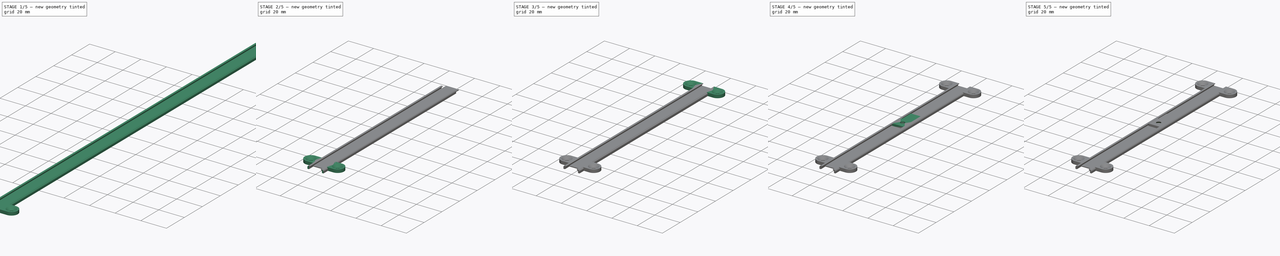
[diagram: build sequence overview — one tinted view per stage of 5, left to right]
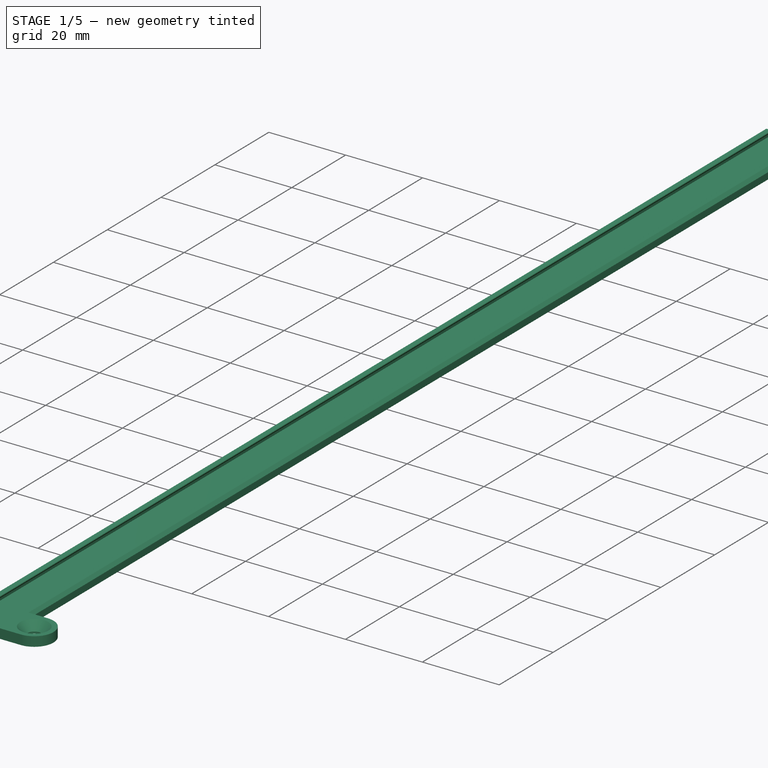
[diagram: stage 1 of 5 — iso view after this stage's code; geometry added in this stage tinted green]
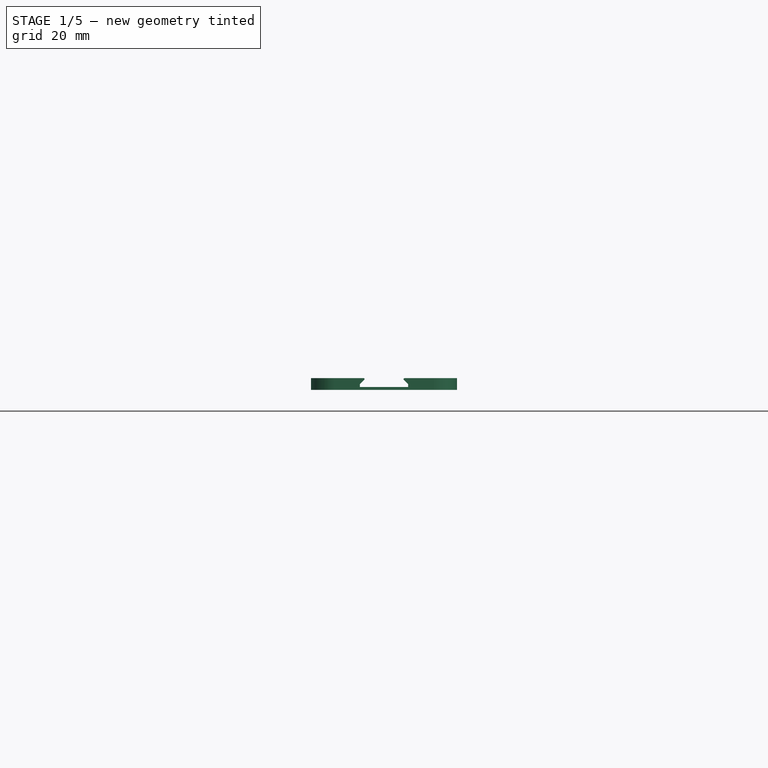
[diagram: stage 1 of 5 — front view after this stage's code; geometry added in this stage tinted green]
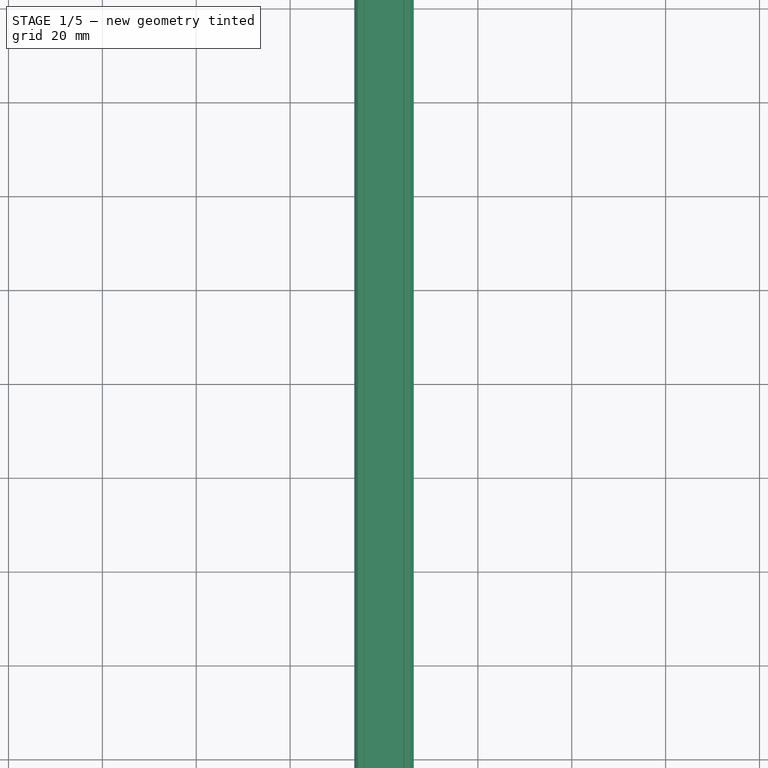
[diagram: stage 1 of 5 — top view after this stage's code; geometry added in this stage tinted green]
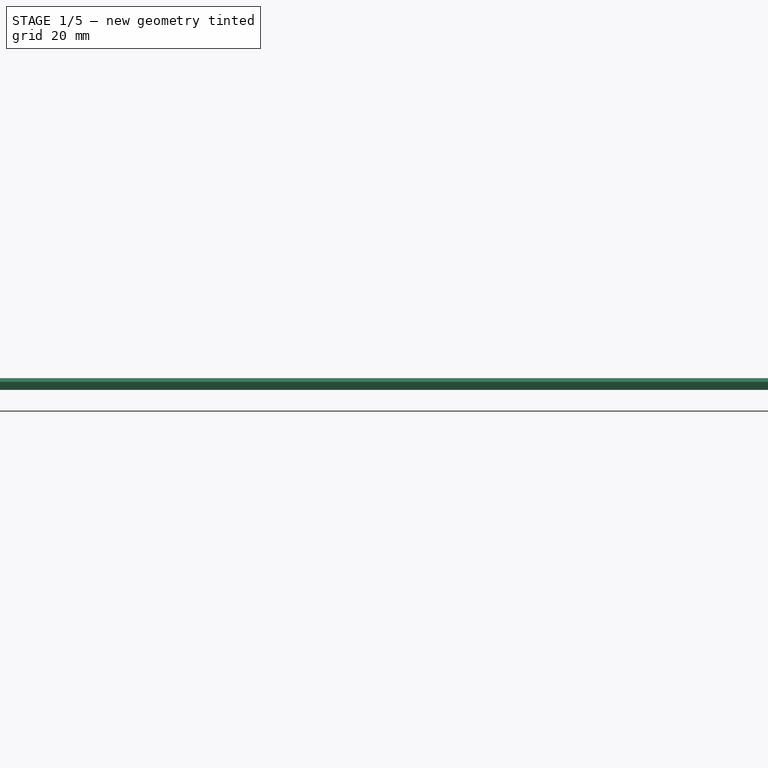
[diagram: stage 1 of 5 — right view after this stage's code; geometry added in this stage tinted green]
FCSTD DOCUMENT  (FreeCAD 0.18.4R)
Label: LedStripHolder
License: All rights reserved
LicenseURL: http://en.wikipedia.org/wiki/All_rights_reserved
objects: Sketcher::SketchObject×8, PartDesign::Pad×6, PartDesign::Fillet×4, PartDesign::Chamfer×3, PartDesign::Body×3, PartDesign::Pocket×1, PartDesign::FeatureBase×1
note: 33 computed .brp shape members not serialized (recipe doc carries the construction recipe); baked Part::Feature solids carry a one-line shape summary decoded from their .brp

FEATURE [PartDesign::Body] Body
  Group = -> [Sketch,Sketch001,Pad,Sketch002,Pad001,Chamfer,Fillet,Fillet001]
  Origin = -> Origin
  Tip = -> Fillet001
FEATURE [Sketcher::SketchObject] Sketch003
  MapMode = 5
  Placement = pos=(0,0,0) rot=(1,0,0;1.5708rad)
  Support = -> [XZ_Plane001]
  sketch-geometry (19):
    g0: LineSegment StartX=-5.15 StartY=1.2 StartZ=0 EndX=-5.15 EndY=0.6 EndZ=0
    g1: LineSegment StartX=-5.15 StartY=0.6 StartZ=0 EndX=5.15 EndY=0.6 EndZ=0
    g2: LineSegment StartX=5.15 StartY=0.6 StartZ=0 EndX=5.15 EndY=1.2 EndZ=0
    g3: LineSegment StartX=5.15 StartY=1.2 StartZ=0 EndX=4.20858 EndY=2.14142 EndZ=0
    g4: LineSegment StartX=6.35 StartY=1.69706 StartZ=0 EndX=6.35 EndY=0 EndZ=0
    g5: LineSegment StartX=6.35 StartY=0 StartZ=0 EndX=-6.35 EndY=0 EndZ=0
    g6: LineSegment StartX=-6.35 StartY=0 StartZ=0 EndX=-6.35 EndY=1.69706 EndZ=0
    g7: LineSegment StartX=-5.56421 StartY=2.48284 StartZ=0 EndX=-4.35 EndY=2.48284 EndZ=0
    g8: LineSegment StartX=-4.20858 StartY=2.14142 StartZ=0 EndX=-5.15 EndY=1.2 EndZ=0
    g9: LineSegment StartX=4.35 StartY=2.48284 StartZ=0 EndX=5.56421 EndY=2.48284 EndZ=0
    g10: ArcOfCircle CenterX=4.35 CenterY=2.28284 CenterZ=0 NormalX=0 NormalY=0 NormalZ=1 AngleXU=0 Radius=0.2 StartAngle=1.5708 EndAngle=3.92699
    g11: ArcOfCircle CenterX=-4.35 CenterY=2.28284 CenterZ=0 NormalX=0 NormalY=0 NormalZ=1 AngleXU=0 Radius=0.2 StartAngle=5.49779 EndAngle=7.85398
    g12: LineSegment [constr] StartX=-4.15 StartY=2.28284 StartZ=0 EndX=-4.15 EndY=0.6 EndZ=0
    g13: LineSegment StartX=-6.35 StartY=1.69706 StartZ=0 EndX=-5.56421 EndY=2.48284 EndZ=0
    g14: LineSegment StartX=5.56421 StartY=2.48284 StartZ=0 EndX=6.35 EndY=1.69706 EndZ=0
    g15: LineSegment [constr] StartX=-5.15 StartY=1.2 StartZ=0 EndX=-5.99853 EndY=2.04853 EndZ=0
    g16: LineSegment [constr] StartX=-5.15 StartY=1.2 StartZ=0 EndX=-6.35 EndY=1.2 EndZ=0
    g17: LineSegment [constr] StartX=-5.15 StartY=1.2 StartZ=0 EndX=-4.20858 EndY=1.2 EndZ=0
    g18: LineSegment [constr] StartX=-4.20858 StartY=1.2 StartZ=0 EndX=-4.20858 EndY=2.14142 EndZ=0
  constraints (56):
    c: Vertical(g0)
    c: Coincident(g0,g1)
    c: Horizontal(g1)
    c: Coincident(g1,g2)
    c: Vertical(g2)
    c: Coincident(g2,g3)
    c: Vertical(g4)
    c: Coincident(g4,g5)
    c: Horizontal(g5)
    c: Coincident(g5,g6)
    c: Vertical(g6)
    c: Horizontal(g7)
    c: Coincident(g8,g0)
    c: Horizontal(g9)
    c: Equal(g9,g7)
    c: Equal(g6,g4)
    c: Equal(g2,g0)
    c: Equal(g3,g8)
    c: DistanceY(g5,g0) = 0.6
    c: DistanceY(g0,g0) = 0.6
    c: DistanceX(g5,g0) = 1.2
    c: DistanceX(g0,g2) = 10.3
    c: Tangent(g3,g10) = 1.5708
    c: Tangent(g9,g10) = 1.5708
    c: Tangent(g7,g11) = 1.5708
    c: Tangent(g8,g11) = 1.5708
    c: Equal(g11,g10)
    c: Radius(g11) = 0.2
    c: PointOnObject(g12,g1)
    c: Vertical(g12)
    c: Tangent(g12,g11) = 1.5708
    c: DistanceX(g0,g12) = 1
    c: Coincident(g15,g0)
    c: PointOnObject(g15,g13)
    c: Coincident(g16,g0)
    c: PointOnObject(g16,g6)
    c: Horizontal(g16)
    c: Perpendicular(g13,g15)
    c: Perpendicular(g8,g15)
    c: Equal(g16,g15)
    c: Equal(g13,g14)
    c: PointOnObject(g9,g7)
    c: Coincident(g17,g0)
    c: Horizontal(g17)
    c: Coincident(g18,g17)
    c: Coincident(g18,g8)
    c: Vertical(g18)
    c: Equal(g17,g18)
    c: Symmetric(g5,g4,g-1)  '__ANCHOR__'
    c: DistanceX(g5,g5) = 12.7  'Width'
    c: DistanceY(g5,g7) = 2.48284  'Height'
    c: Coincident(g13,g7)
    c: Coincident(g13,g6)
    c: Coincident(g9,g14)
    c: Coincident(g14,g4)
    c: DistanceX(g7,g9) = 11.1284  'FlapDisplacement'
FEATURE [PartDesign::Pad] Pad002
  Length = 300
  Length2 = 100
  Midplane = true
  Placement = pos=(0,0,0) rot=(1,0,0;1.5708rad)
  Profile = -> Sketch003
  Type = 0
FEATURE [Sketcher::SketchObject] Sketch004
  MapMode = 5
  Support = -> [XY_Plane001]
  expr: Constraints[16] = Pad002.Length / 2
  expr: Constraints[11] = Sketch003.Constraints.FlapDisplacement / 2
  sketch-geometry (16):
    g0: LineSegment StartX=-10.5642 StartY=-65 StartZ=0 EndX=-5.56421 EndY=-65 EndZ=0
    g1: LineSegment StartX=-5.56421 StartY=-65 StartZ=0 EndX=-5.56421 EndY=-75 EndZ=0
    g2: LineSegment StartX=-5.56421 StartY=-75 StartZ=0 EndX=-10.5642 EndY=-75 EndZ=0
    g3: LineSegment [constr] StartX=-10.5642 StartY=-75 StartZ=0 EndX=-10.5642 EndY=-65 EndZ=0
    g4: ArcOfCircle CenterX=-10.5642 CenterY=-70 CenterZ=0 NormalX=0 NormalY=0 NormalZ=1 AngleXU=0 Radius=5 StartAngle=1.5708 EndAngle=4.71239
    g5: LineSegment [constr] StartX=-5.56421 StartY=-75 StartZ=0 EndX=0 EndY=-75 EndZ=0
    g6: Circle CenterX=-10.5642 CenterY=-70 CenterZ=0 NormalX=0 NormalY=0 NormalZ=1 AngleXU=0 Radius=1.7
    g7: LineSegment [constr] StartX=0 StartY=-75 StartZ=0 EndX=0 EndY=0 EndZ=0
    g8: LineSegment StartX=5.56421 StartY=-65 StartZ=0 EndX=10.5642 EndY=-65 EndZ=0
    g9: LineSegment [constr] StartX=10.5642 StartY=-65 StartZ=0 EndX=10.5642 EndY=-75 EndZ=0
    g10: LineSegment StartX=10.5642 StartY=-75 StartZ=0 EndX=5.56421 EndY=-75 EndZ=0
    g11: LineSegment StartX=5.56421 StartY=-75 StartZ=0 EndX=5.56421 EndY=-65 EndZ=0
    g12: ArcOfCircle CenterX=10.5642 CenterY=-70 CenterZ=0 NormalX=0 NormalY=0 NormalZ=1 AngleXU=0 Radius=5 StartAngle=4.71239 EndAngle=7.85398
    g13: Circle CenterX=10.5642 CenterY=-70 CenterZ=0 NormalX=0 NormalY=0 NormalZ=1 AngleXU=0 Radius=1.7
    g14: LineSegment [constr] StartX=-10.5642 StartY=-70 StartZ=0 EndX=-15.5642 EndY=-70 EndZ=0
    g15: LineSegment [constr] StartX=0 StartY=-75 StartZ=0 EndX=5.56421 EndY=-75 EndZ=0
  constraints (43):
    c: Coincident(g0,g1)
    c: Coincident(g1,g2)
    c: Coincident(g2,g3)
    c: Coincident(g3,g0)
    c: Horizontal(g0)
    c: Horizontal(g2)
    c: Vertical(g1)
    c: Radius(g4) = 5
    c: Coincident(g5,g1)
    c: PointOnObject(g5,g-2)
    c: Horizontal(g5)
    c: DistanceX(g5,g5) = 5.56421
    c: Coincident(g6,g4)
    c: Radius(g6) = 1.7
    c: Coincident(g7,g5)
    c: Coincident(g7,g-1)
    c: DistanceY(g7,g7) = 75
    c: Coincident(g8,g9)
    c: Coincident(g9,g10)
    c: Coincident(g10,g11)
    c: Coincident(g11,g8)
    c: Horizontal(g8)
    c: Horizontal(g10)
    c: Vertical(g9)
    c: Vertical(g11)
    c: Equal(g11,g1)
    c: PointOnObject(g12,g9)
    c: Coincident(g12,g8)
    c: Coincident(g12,g10)
    c: Vertical(g3)
    c: Equal(g0,g10)
    c: Coincident(g13,g12)
    c: Equal(g13,g6)
    c: Tangent(g4,g0) = 1.5708
    c: Coincident(g4,g2)
    c: Coincident(g14,g4)
    c: PointOnObject(g14,g4)
    c: Horizontal(g14)
    c: Equal(g14,g0)
    c: Coincident(g15,g5)
    c: Coincident(g15,g10)
    c: Horizontal(g15)
    c: Equal(g15,g5)
FEATURE [PartDesign::Pad] Pad003
  BaseFeature = -> Pad002
  Length = 2.48284
  Length2 = 100
  Placement = pos=(0,0,0) rot=(1,0,0;1.5708rad)
  Profile = -> Sketch004
  Refine = true
  Type = 0
  expr: Length = Sketch003.Constraints.Height
FEATURE [Sketcher::SketchObject] Sketch005
  AttachmentOffset = pos=(0,0,75) rot=(0,0,1;0rad)
  ExternalGeometry = -> [Sketch003]
  MapMode = 5
  Placement = pos=(0,-75,-1.67e-14) rot=(1,0,0;1.5708rad)
  Support = -> [XZ_Plane001]
  expr: AttachmentOffset.Base.z = Pad002.Length / 2
  sketch-geometry (14):
    g0: ArcOfCircle CenterX=-4.35 CenterY=2.28284 CenterZ=0 NormalX=0 NormalY=0 NormalZ=1 AngleXU=0 Radius=0.2 StartAngle=5.49779 EndAngle=7.85398
    g1: ArcOfCircle CenterX=4.35 CenterY=2.28284 CenterZ=0 NormalX=0 NormalY=0 NormalZ=1 AngleXU=0 Radius=0.2 StartAngle=1.5708 EndAngle=3.92699
    g2: LineSegment StartX=4.20858 StartY=2.14142 StartZ=0 EndX=5.15 EndY=1.2 EndZ=0
    g3: LineSegment StartX=5.15 StartY=1.2 StartZ=0 EndX=5.15 EndY=0 EndZ=0
    g4: LineSegment StartX=6.35 StartY=0 StartZ=0 EndX=6.35 EndY=1.69706 EndZ=0
    g5: LineSegment StartX=6.35 StartY=1.69706 StartZ=0 EndX=5.56421 EndY=2.48284 EndZ=0
    g6: LineSegment StartX=5.56421 StartY=2.48284 StartZ=0 EndX=4.35 EndY=2.48284 EndZ=0
    g7: LineSegment StartX=-4.35 StartY=2.48284 StartZ=0 EndX=-5.56421 EndY=2.48284 EndZ=0
    g8: LineSegment StartX=-5.56421 StartY=2.48284 StartZ=0 EndX=-6.35 EndY=1.69706 EndZ=0
    g9: LineSegment StartX=-5.15 StartY=0 StartZ=0 EndX=-5.15 EndY=1.2 EndZ=0
    g10: LineSegment StartX=-5.15 StartY=1.2 StartZ=0 EndX=-4.20858 EndY=2.14142 EndZ=0
    g11: LineSegment StartX=5.15 StartY=0 StartZ=0 EndX=6.35 EndY=0 EndZ=0
    g12: LineSegment StartX=-6.35 StartY=1.69706 StartZ=0 EndX=-6.35 EndY=0 EndZ=0
    g13: LineSegment StartX=-6.35 StartY=0 StartZ=0 EndX=-5.15 EndY=0 EndZ=0
  constraints (34):
    c: Coincident(g0,g-3)
    c: Coincident(g0,g-3)
    c: Coincident(g0,g-3)
    c: Coincident(g1,g-4)
    c: Coincident(g1,g-4)
    c: Coincident(g1,g-4)
    c: Coincident(g1,g2)
    c: Coincident(g2,g-10)
    c: Coincident(g2,g3)
    c: Coincident(g5,g-8)
    c: Coincident(g6,g5)
    c: Coincident(g6,g1)
    c: Coincident(g0,g7)
    c: Coincident(g7,g-5)
    c: Coincident(g7,g8)
    c: Coincident(g9,g-7)
    c: Coincident(g9,g10)
    c: Coincident(g10,g0)
    c: Vertical(g4)
    c: PointOnObject(g4,g-1)
    c: PointOnObject(g5,g-8)
    c: Equal(g5,g8)
    c: Coincident(g4,g5)
    c: Coincident(g11,g4)
    c: Coincident(g8,g-6)
    c: Coincident(g12,g8)
    c: Coincident(g12,g-6)
    c: Coincident(g13,g12)
    c: Horizontal(g13)
    c: Coincident(g9,g13)
    c: Vertical(g9)
    c: Vertical(g3)
    c: Horizontal(g11)
    c: Coincident(g3,g11)
FEATURE [Sketcher::SketchObject] Sketch006
  AttachmentOffset = pos=(0,0,-75) rot=(0,0,1;0rad)
  ExternalGeometry = -> [Sketch003]
  MapMode = 5
  Placement = pos=(0,75,1.67e-14) rot=(1,0,0;1.5708rad)
  Support = -> [XZ_Plane001]
  expr: AttachmentOffset.Base.z = Pad002.Length / -2
  sketch-geometry (14):
    g0: ArcOfCircle CenterX=-4.35 CenterY=2.28284 CenterZ=0 NormalX=0 NormalY=0 NormalZ=1 AngleXU=0 Radius=0.2 StartAngle=5.49779 EndAngle=7.85398
    g1: ArcOfCircle CenterX=4.35 CenterY=2.28284 CenterZ=0 NormalX=0 NormalY=0 NormalZ=1 AngleXU=0 Radius=0.2 StartAngle=1.5708 EndAngle=3.92699
    g2: LineSegment StartX=5 StartY=2e-16 StartZ=0 EndX=6.35 EndY=2e-16 EndZ=0
    g3: LineSegment StartX=6.35 StartY=2e-16 StartZ=0 EndX=6.35 EndY=1.69706 EndZ=0
    g4: LineSegment StartX=6.35 StartY=1.69706 StartZ=0 EndX=5.56421 EndY=2.48284 EndZ=0
    g5: LineSegment StartX=5.56421 StartY=2.48284 StartZ=0 EndX=4.35 EndY=2.48284 EndZ=0
    g6: LineSegment StartX=-4.35 StartY=2.48284 StartZ=0 EndX=-5.56421 EndY=2.48284 EndZ=0
    g7: LineSegment StartX=-5.56421 StartY=2.48284 StartZ=0 EndX=-6.35 EndY=1.69706 EndZ=0
    g8: LineSegment StartX=-6.35 StartY=1.69706 StartZ=0 EndX=-6.35 EndY=0 EndZ=0
    g9: LineSegment StartX=-5 StartY=0 StartZ=0 EndX=-5 EndY=1.35 EndZ=0
    g10: LineSegment StartX=-5 StartY=1.35 StartZ=0 EndX=-4.20858 EndY=2.14142 EndZ=0
    g11: LineSegment StartX=-5 StartY=0 StartZ=0 EndX=-6.35 EndY=0 EndZ=0
    g12: LineSegment StartX=4.20858 StartY=2.14142 StartZ=0 EndX=5 EndY=1.35 EndZ=0
    g13: LineSegment StartX=5 StartY=2e-16 StartZ=0 EndX=5 EndY=1.35 EndZ=0
  constraints (34):
    c: Coincident(g0,g-3)
    c: Coincident(g0,g-3)
    c: Coincident(g0,g-3)
    c: Coincident(g1,g-4)
    c: Coincident(g1,g-4)
    c: Coincident(g1,g-4)
    c: Horizontal(g2)
    c: Coincident(g2,g3)
    c: Coincident(g3,g-9)
    c: Coincident(g3,g4)
    c: Coincident(g4,g-8)
    c: Coincident(g5,g4)
    c: Coincident(g5,g1)
    c: Coincident(g0,g6)
    c: Coincident(g6,g-5)
    c: Coincident(g6,g7)
    c: Coincident(g7,g-6)
    c: Coincident(g7,g8)
    c: Coincident(g10,g0)
    c: Vertical(g9)
    c: PointOnObject(g-7,g10)
    c: Coincident(g9,g10)
    c: DistanceX(g-7,g9) = 0.15
    c: Coincident(g8,g-6)
    c: Coincident(g11,g9)
    c: Coincident(g11,g8)
    c: Horizontal(g11)
    c: Coincident(g2,g-9)
    c: Coincident(g12,g1)
    c: PointOnObject(g-10,g12)
    c: Coincident(g13,g2)
    c: Coincident(g13,g12)
    c: Vertical(g13)
    c: Equal(g11,g2)
FEATURE [Sketcher::SketchObject] Sketch007
  MapMode = 5
  Support = -> [XY_Plane002]
  expr: Constraints[35] = Pad002.Length / 2
  expr: Constraints[8] = Sketch003.Constraints.FlapDisplacement / 2
  sketch-geometry (16):
    g0: LineSegment StartX=-10.5642 StartY=75 StartZ=0 EndX=-5.56421 EndY=75 EndZ=0
    g1: LineSegment StartX=-5.56421 StartY=75 StartZ=0 EndX=-5.56421 EndY=65 EndZ=0
    g2: LineSegment StartX=-5.56421 StartY=65 StartZ=0 EndX=-10.5642 EndY=65 EndZ=0
    g3: LineSegment [constr] StartX=-10.5642 StartY=65 StartZ=0 EndX=-10.5642 EndY=75 EndZ=0
    g4: ArcOfCircle CenterX=-10.5642 CenterY=70 CenterZ=0 NormalX=0 NormalY=0 NormalZ=1 AngleXU=0 Radius=5 StartAngle=1.5708 EndAngle=4.71239
    g5: LineSegment [constr] StartX=-5.56421 StartY=75 StartZ=0 EndX=0 EndY=75 EndZ=0
    g6: Circle CenterX=-10.5642 CenterY=70 CenterZ=0 NormalX=0 NormalY=0 NormalZ=1 AngleXU=0 Radius=1.7
    g7: LineSegment StartX=5.56421 StartY=75 StartZ=0 EndX=10.5642 EndY=75 EndZ=0
    g8: LineSegment [constr] StartX=10.5642 StartY=75 StartZ=0 EndX=10.5642 EndY=65 EndZ=0
    g9: LineSegment StartX=10.5642 StartY=65 StartZ=0 EndX=5.56421 EndY=65 EndZ=0
    g10: LineSegment StartX=5.56421 StartY=65 StartZ=0 EndX=5.56421 EndY=75 EndZ=0
    g11: ArcOfCircle CenterX=10.5642 CenterY=70 CenterZ=0 NormalX=0 NormalY=0 NormalZ=1 AngleXU=0 Radius=5 StartAngle=4.71239 EndAngle=7.85398
    g12: Circle CenterX=10.5642 CenterY=70 CenterZ=0 NormalX=0 NormalY=0 NormalZ=1 AngleXU=0 Radius=1.7
    g13: LineSegment [constr] StartX=-10.5642 StartY=70 StartZ=0 EndX=-15.5642 EndY=70 EndZ=0
    g14: LineSegment [constr] StartX=0 StartY=0 StartZ=0 EndX=0 EndY=75 EndZ=0
    g15: LineSegment [constr] StartX=5.56421 StartY=75 StartZ=0 EndX=0 EndY=75 EndZ=0
  constraints (43):
    c: Coincident(g0,g1)
    c: Coincident(g2,g3)
    c: Coincident(g3,g0)
    c: Horizontal(g0)
    c: Horizontal(g2)
    c: Vertical(g1)
    c: Radius(g4) = 5
    c: Horizontal(g5)
    c: DistanceX(g5,g5) = 5.56421
    c: Coincident(g6,g4)
    c: Radius(g6) = 1.7
    c: Coincident(g7,g8)
    c: Coincident(g8,g9)
    c: Coincident(g9,g10)
    c: Coincident(g10,g7)
    c: Horizontal(g7)
    c: Horizontal(g9)
    c: Vertical(g8)
    c: Vertical(g10)
    c: Equal(g10,g1)
    c: PointOnObject(g11,g8)
    c: Coincident(g11,g7)
    c: Coincident(g11,g9)
    c: Vertical(g3)
    c: Equal(g0,g9)
    c: Coincident(g12,g11)
    c: Equal(g12,g6)
    c: Tangent(g4,g0) = 1.5708
    c: Coincident(g4,g2)
    c: Coincident(g13,g4)
    c: PointOnObject(g13,g4)
    c: Horizontal(g13)
    c: Equal(g13,g0)
    c: Coincident(g14,g-1)
    c: Vertical(g14)
    c: DistanceY(g14,g14) = 75
    c: Coincident(g15,g7)
    c: Horizontal(g15)
    c: Coincident(g5,g0)
    c: Coincident(g5,g15)
    c: Equal(g15,g5)
    c: Coincident(g2,g1)
    c: Coincident(g5,g14)
FEATURE [PartDesign::Chamfer] Chamfer002
  Base = -> Pad003 [Edge58,Edge55]
  BaseFeature = -> Pad003
  Placement = pos=(0,0,0) rot=(1,0,0;1.5708rad)
  Size = 2
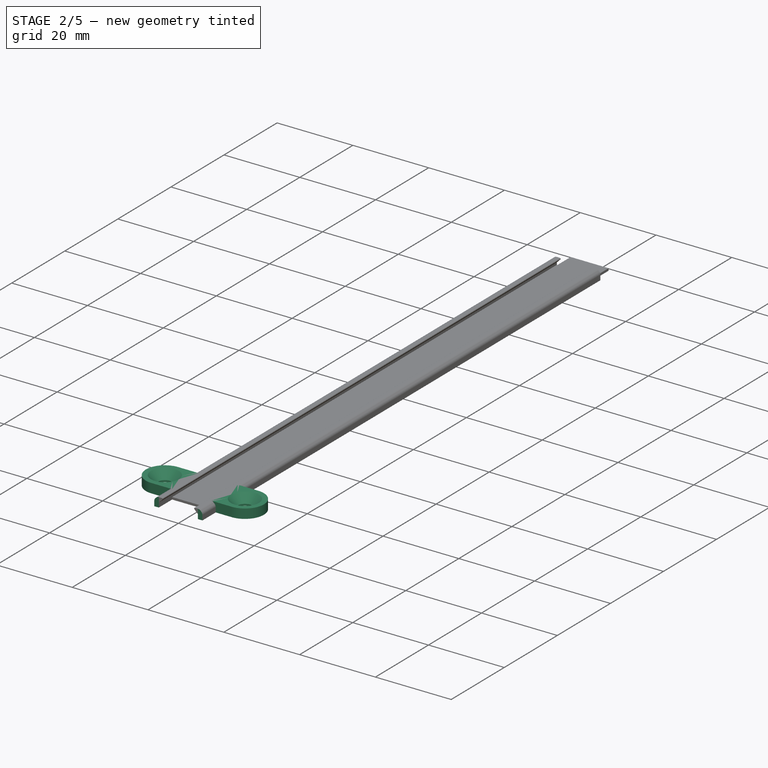
[diagram: stage 2 of 5 — iso view after this stage's code; geometry added in this stage tinted green]
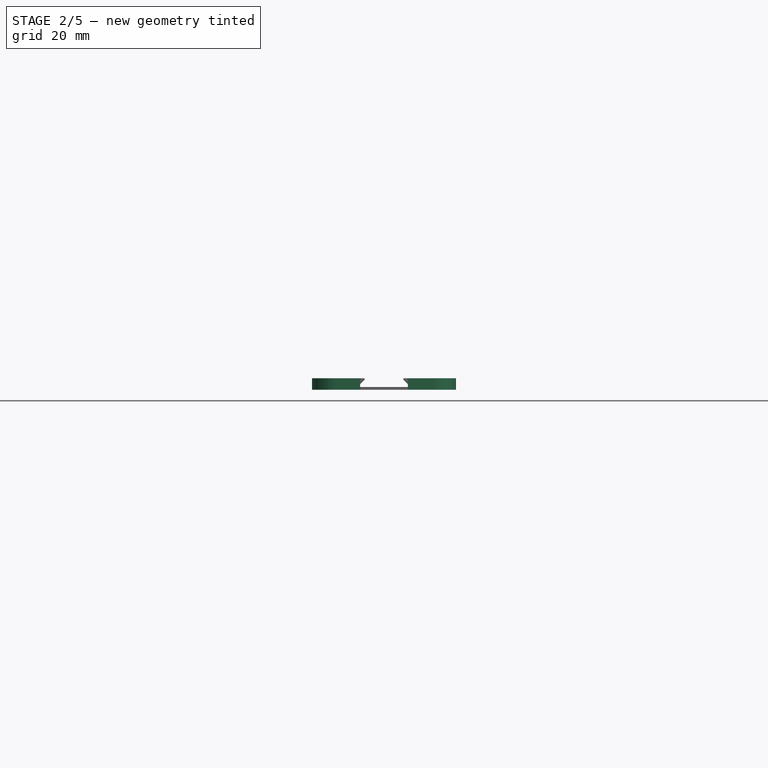
[diagram: stage 2 of 5 — front view after this stage's code; geometry added in this stage tinted green]
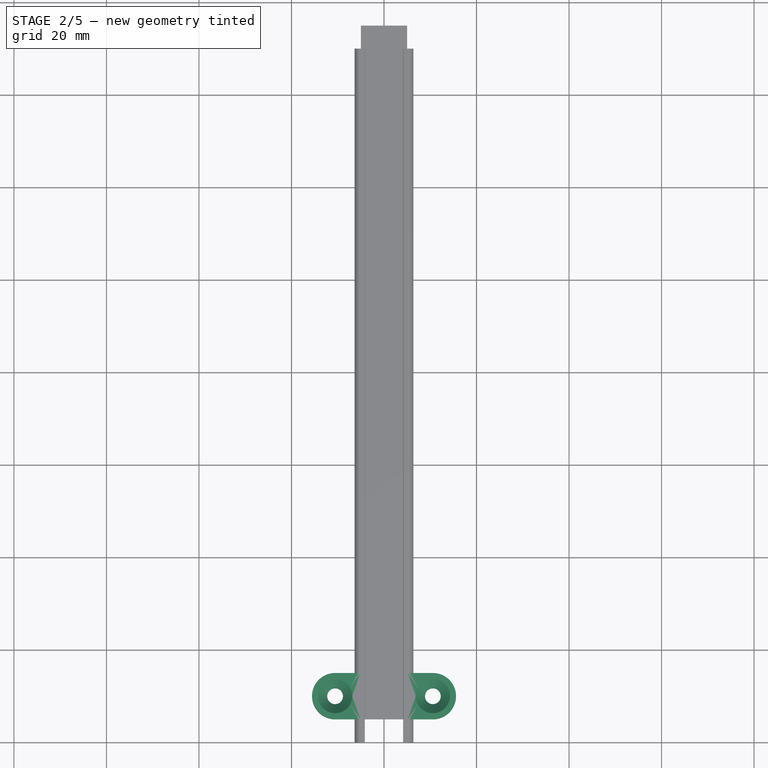
[diagram: stage 2 of 5 — top view after this stage's code; geometry added in this stage tinted green]
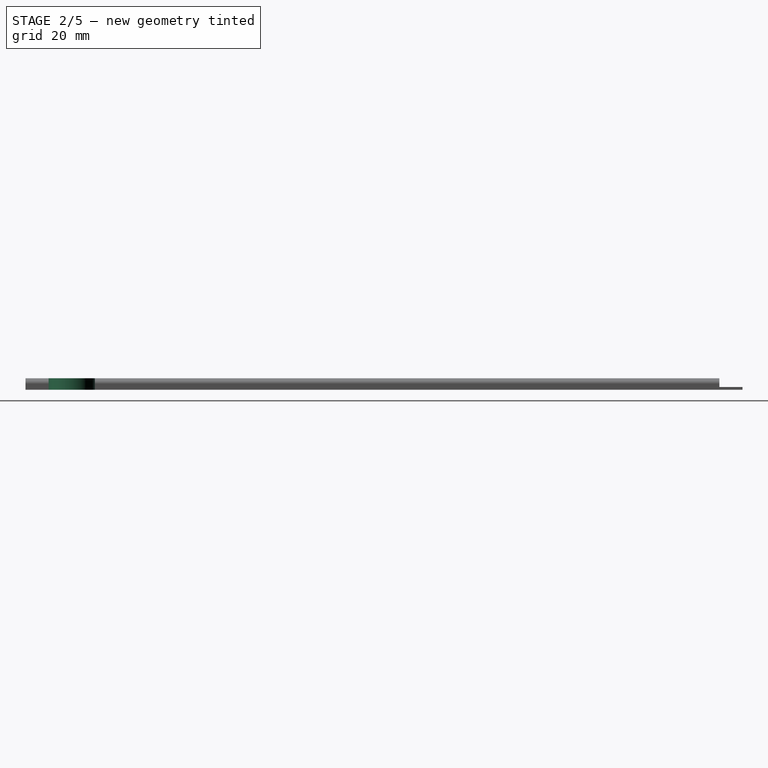
[diagram: stage 2 of 5 — right view after this stage's code; geometry added in this stage tinted green]
FEATURE [PartDesign::Pad] Pad004
  BaseFeature = -> Chamfer002
  Length = 5
  Length2 = 100
  Placement = pos=(0,0,0) rot=(1,0,0;1.5708rad)
  Profile = -> Sketch005
  Type = 0
FEATURE [PartDesign::Pocket] Pocket
  BaseFeature = -> Pad004
  Length = 5
  Length2 = 100
  Placement = pos=(0,0,0) rot=(1,0,0;1.5708rad)
  Profile = -> Sketch006
  Refine = true
  Reversed = true
  Type = 0
FEATURE [PartDesign::Body] Body002
  BaseFeature = -> Pad004
  Group = -> [Clone,Sketch007,Pad005,Chamfer001,Fillet002]
  Origin = -> Origin002
  Tip = -> Fillet002
FEATURE [PartDesign::Fillet] Fillet003
  Base = -> Pocket [Edge10,Edge12,Edge82,Edge70,Edge73,Edge81,Edge34,Edge35]
  BaseFeature = -> Pocket
  Placement = pos=(0,0,0) rot=(1,0,0;1.5708rad)
  Radius = 1
FEATURE [PartDesign::Body] Body001
  Group = -> [Sketch003,Pad002,Sketch004,Pad003,Sketch005,Chamfer002,Pad004,Sketch006,Pocket,Fillet003]
  Origin = -> Origin001
  Tip = -> Fillet003
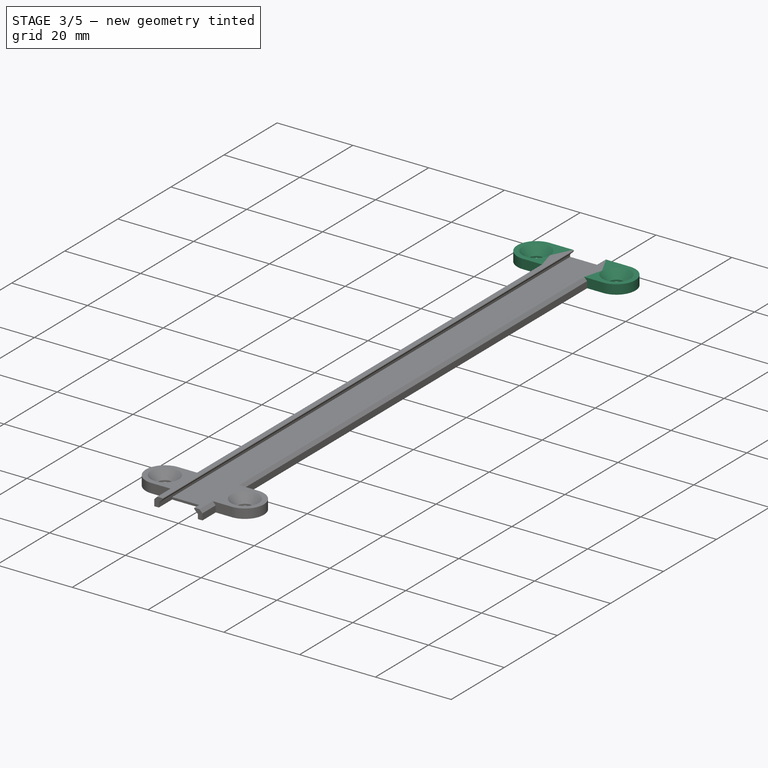
[diagram: stage 3 of 5 — iso view after this stage's code; geometry added in this stage tinted green]
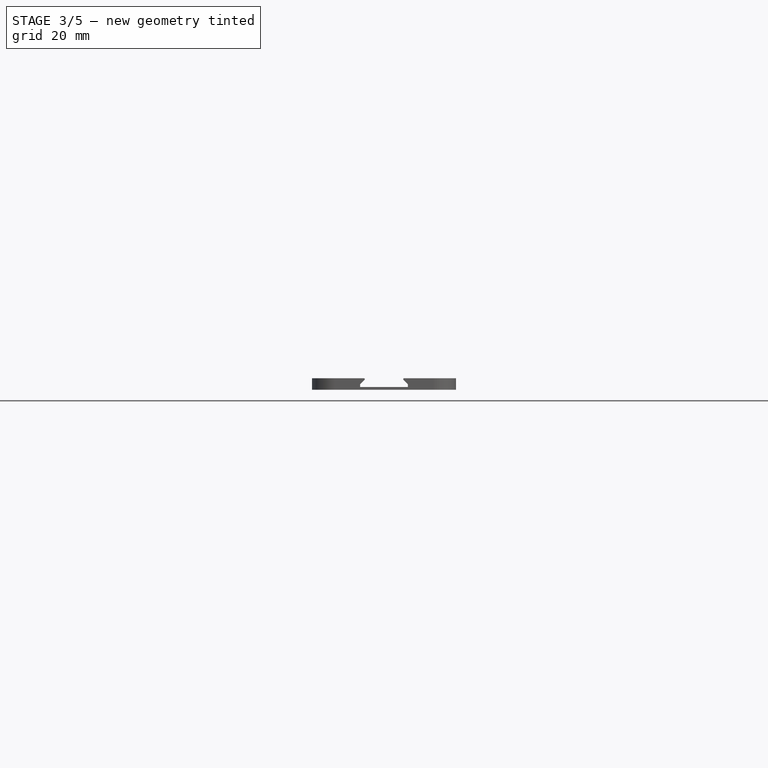
[diagram: stage 3 of 5 — front view after this stage's code; geometry added in this stage tinted green]
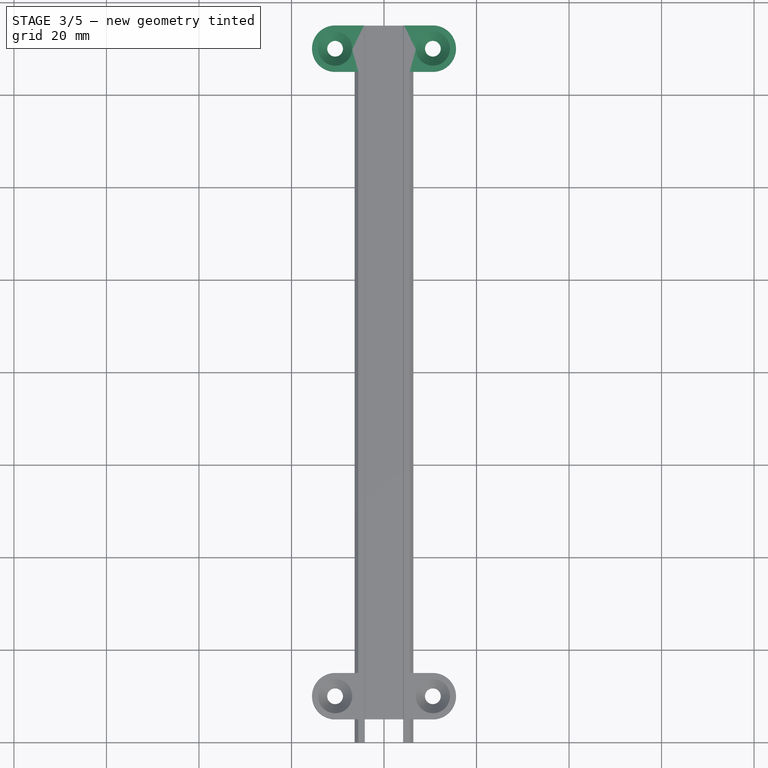
[diagram: stage 3 of 5 — top view after this stage's code; geometry added in this stage tinted green]
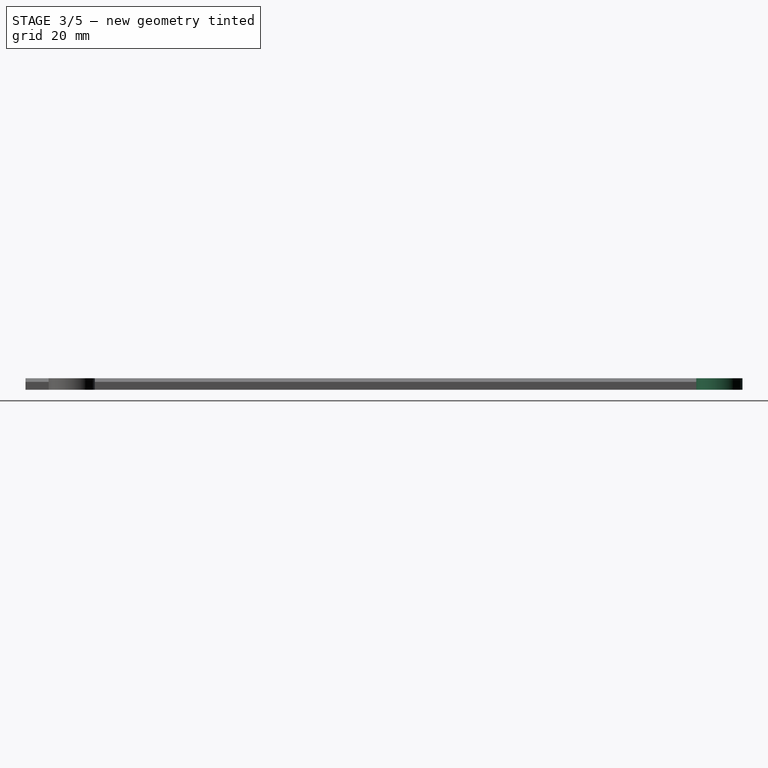
[diagram: stage 3 of 5 — right view after this stage's code; geometry added in this stage tinted green]
FEATURE [PartDesign::FeatureBase] Clone
  BaseFeature = -> Pad004
  Placement = pos=(0,0,0) rot=(1,0,0;1.5708rad)
FEATURE [PartDesign::Pad] Pad005
  BaseFeature = -> Clone
  Length = 2.48284
  Length2 = 100
  Placement = pos=(0,0,0) rot=(1,0,0;1.5708rad)
  Profile = -> Sketch007
  Refine = true
  Type = 0
  expr: Length = Pad003.Length
FEATURE [PartDesign::Chamfer] Chamfer001
  Base = -> Pad005 [Edge94,Edge53]
  BaseFeature = -> Pad005
  Placement = pos=(0,0,0) rot=(1,0,0;1.5708rad)
  Size = 2
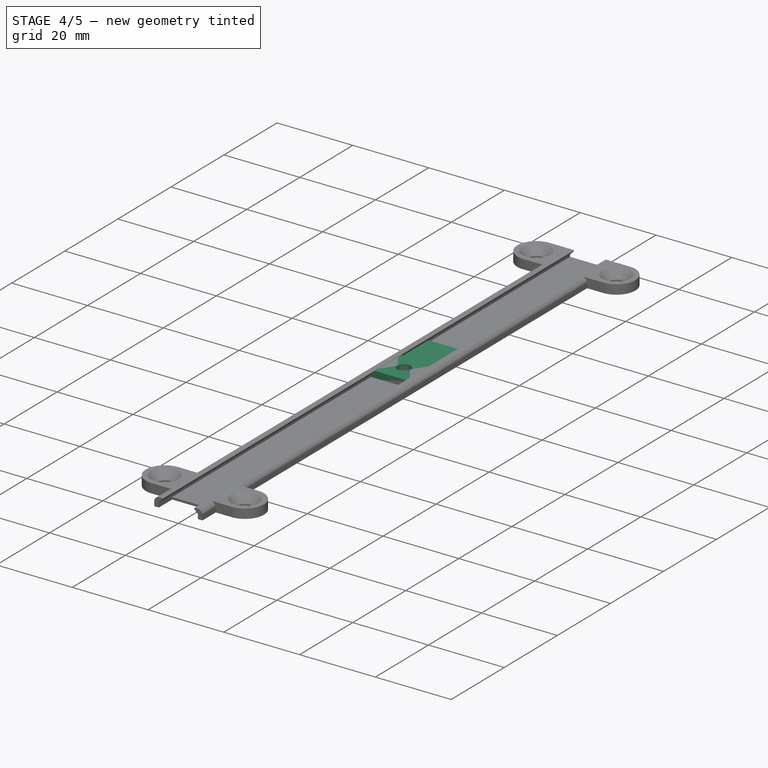
[diagram: stage 4 of 5 — iso view after this stage's code; geometry added in this stage tinted green]
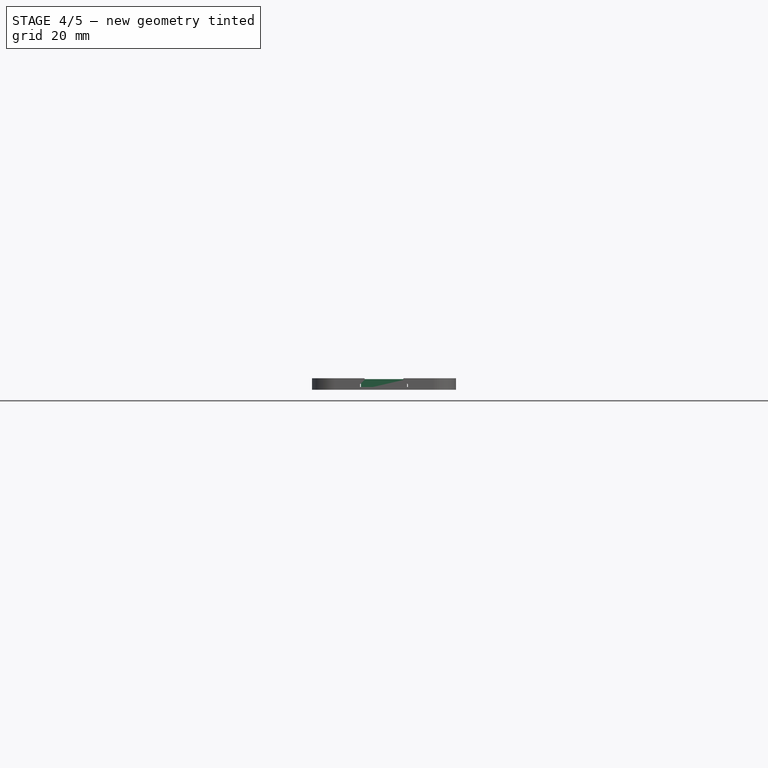
[diagram: stage 4 of 5 — front view after this stage's code; geometry added in this stage tinted green]
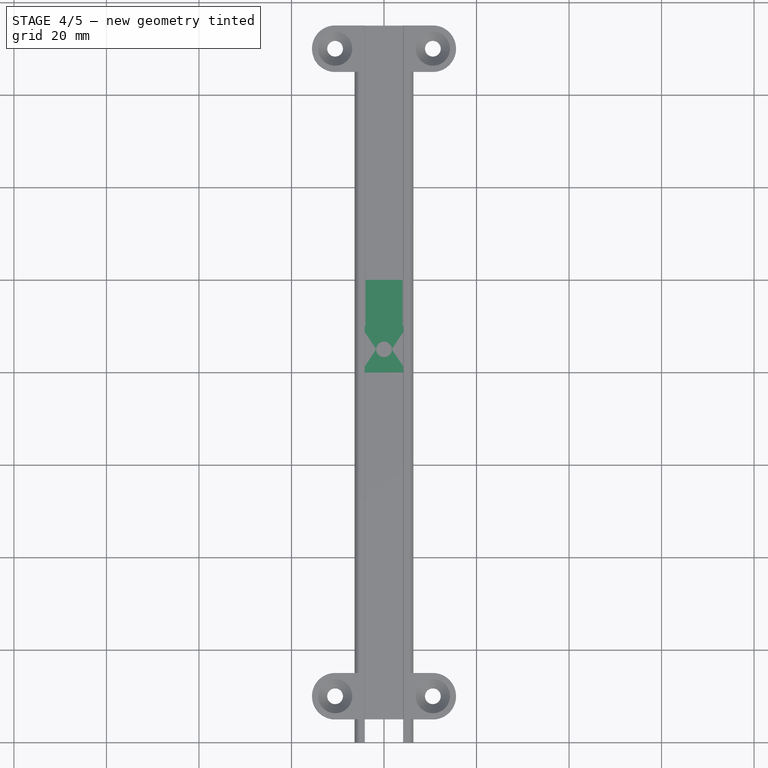
[diagram: stage 4 of 5 — top view after this stage's code; geometry added in this stage tinted green]
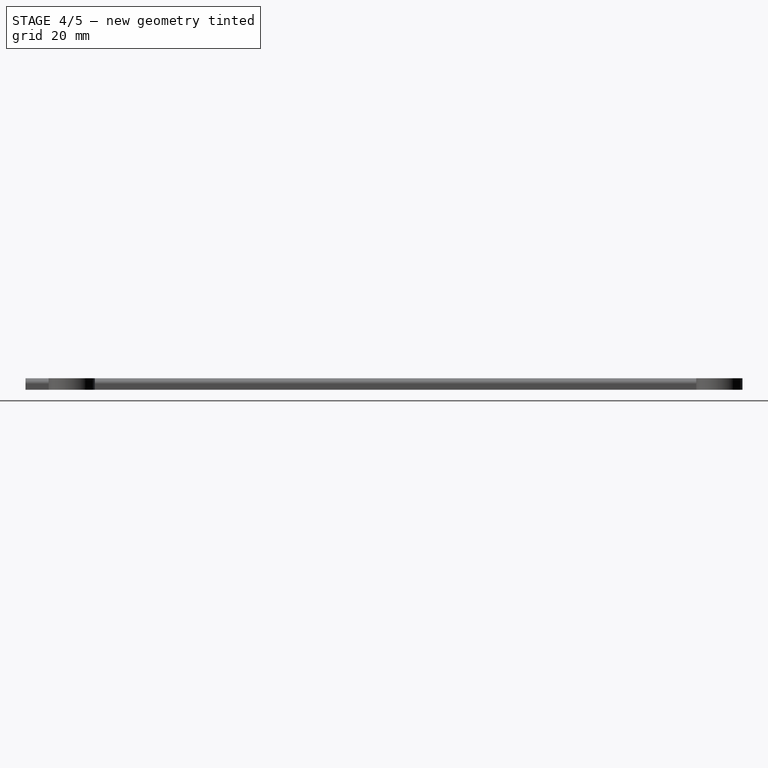
[diagram: stage 4 of 5 — right view after this stage's code; geometry added in this stage tinted green]
FEATURE [Sketcher::SketchObject] Sketch
  MapMode = 5
  Support = -> [XY_Plane]
  sketch-geometry (9):
    g0: Circle CenterX=4e-16 CenterY=5 CenterZ=0 NormalX=0 NormalY=0 NormalZ=1 AngleXU=0 Radius=1.7
    g1: LineSegment StartX=-5 StartY=10 StartZ=0 EndX=5 EndY=10 EndZ=0
    g2: LineSegment StartX=5 StartY=10 StartZ=0 EndX=5 EndY=0 EndZ=0
    g3: LineSegment StartX=5 StartY=0 StartZ=0 EndX=-5 EndY=0 EndZ=0
    g4: LineSegment StartX=-5 StartY=0 StartZ=0 EndX=-5 EndY=10 EndZ=0
    g5: LineSegment StartX=-4 StartY=10 StartZ=0 EndX=-4 EndY=20 EndZ=0
    g6: LineSegment StartX=-4 StartY=20 StartZ=0 EndX=4 EndY=20 EndZ=0
    g7: LineSegment StartX=4 StartY=20 StartZ=0 EndX=4 EndY=10 EndZ=0
    g8: LineSegment [constr] StartX=-5.38e-14 StartY=20 StartZ=0 EndX=-5.38e-14 EndY=10 EndZ=0
  constraints (26):
    c: Radius(g0) = 1.7
    c: Coincident(g2,g3)
    c: Coincident(g3,g4)
    c: Horizontal(g1)
    c: Horizontal(g3)
    c: Vertical(g2)
    c: Vertical(g4)
    c: Symmetric(g3,g1,g0)
    c: DistanceX(g3,g3) = 10
    c: Vertical(g5)
    c: Coincident(g5,g6)
    c: Horizontal(g6)
    c: Coincident(g6,g7)
    c: Vertical(g7)
    c: DistanceY(g5,g5) = 10
    c: Equal(g3,g4)
    c: Coincident(g4,g1)
    c: Coincident(g1,g2)
    c: PointOnObject(g5,g1)
    c: PointOnObject(g7,g1)
    c: PointOnObject(g8,g6)
    c: PointOnObject(g8,g1)
    c: Symmetric(g5,g6,g8)
    c: DistanceX(g6,g6) = 8
    c: PointOnObject(g0,g8)
    c: Symmetric(g3,g2,g-1)  '__ANCHOR__'
FEATURE [Sketcher::SketchObject] Sketch001
  ExternalGeometry = -> [Sketch]
  MapMode = 5
  Support = -> [XY_Plane]
  sketch-geometry (9):
    g0: LineSegment StartX=-5 StartY=0 StartZ=0 EndX=5 EndY=0 EndZ=0
    g1: LineSegment StartX=5 StartY=0 StartZ=0 EndX=5 EndY=10 EndZ=0
    g2: LineSegment StartX=4 StartY=20 StartZ=0 EndX=4 EndY=10 EndZ=0
    g3: LineSegment StartX=4 StartY=10 StartZ=0 EndX=5 EndY=10 EndZ=0
    g4: LineSegment StartX=4 StartY=20 StartZ=0 EndX=-4 EndY=20 EndZ=0
    g5: LineSegment StartX=-4 StartY=20 StartZ=0 EndX=-4 EndY=10 EndZ=0
    g6: LineSegment StartX=-4 StartY=10 StartZ=0 EndX=-5 EndY=10 EndZ=0
    g7: LineSegment StartX=-5 StartY=10 StartZ=0 EndX=-5 EndY=0 EndZ=0
    g8: Circle CenterX=0 CenterY=5 CenterZ=0 NormalX=0 NormalY=0 NormalZ=1 AngleXU=0 Radius=1.7
  constraints (20):
    c: Coincident(g-3,g0)
    c: Coincident(g0,g-3)
    c: Coincident(g0,g1)
    c: Coincident(g1,g-4)
    c: Coincident(g-5,g2)
    c: PointOnObject(g2,g-4)
    c: Vertical(g2)
    c: Coincident(g2,g3)
    c: Coincident(g3,g1)
    c: Coincident(g2,g4)
    c: Coincident(g4,g-5)
    c: Coincident(g4,g5)
    c: PointOnObject(g5,g-4)
    c: Vertical(g5)
    c: Coincident(g5,g6)
    c: Coincident(g6,g-4)
    c: Coincident(g6,g7)
    c: Coincident(g7,g0)
    c: Coincident(g8,g-6)
    c: Equal(g8,g-6)
FEATURE [PartDesign::Pad] Pad
  Length = 2
  Length2 = 100
  Profile = -> Sketch001
  Type = 0
FEATURE [Sketcher::SketchObject] Sketch002
  AttachmentOffset = pos=(0,0,2) rot=(0,0,1;0rad)
  ExternalGeometry = -> [Sketch]
  MapMode = 5
  Placement = pos=(0,0,2) rot=(0,0,1;0rad)
  Support = -> [XY_Plane]
  expr: AttachmentOffset.Base.z = Sketch001.Placement.Base.z + Pad.Length
  sketch-geometry (5):
    g0: LineSegment StartX=-5 StartY=10 StartZ=0 EndX=5 EndY=10 EndZ=0
    g1: LineSegment StartX=5 StartY=10 StartZ=0 EndX=5 EndY=0 EndZ=0
    g2: LineSegment StartX=5 StartY=0 StartZ=0 EndX=-5 EndY=0 EndZ=0
    g3: LineSegment StartX=-5 StartY=0 StartZ=0 EndX=-5 EndY=10 EndZ=0
    g4: Circle CenterX=4e-16 CenterY=5 CenterZ=0 NormalX=0 NormalY=0 NormalZ=1 AngleXU=0 Radius=1.7
  constraints (12):
    c: Coincident(g0,g1)
    c: Coincident(g1,g2)
    c: Coincident(g2,g3)
    c: Coincident(g3,g0)
    c: Horizontal(g0)
    c: Horizontal(g2)
    c: Vertical(g1)
    c: Vertical(g3)
    c: Coincident(g0,g-3)
    c: Coincident(g1,g-4)
    c: Coincident(g4,g-5)
    c: Equal(g4,g-5)
FEATURE [PartDesign::Pad] Pad001
  BaseFeature = -> Pad
  Length = 0.3
  Length2 = 100
  Profile = -> Sketch002
  Refine = true
  Type = 0
FEATURE [PartDesign::Fillet] Fillet002
  Base = -> Chamfer001 [Edge84,Edge103,Edge8,Edge34,Edge4,Edge23,Edge88,Edge95]
  BaseFeature = -> Chamfer001
  Placement = pos=(0,0,0) rot=(1,0,0;1.5708rad)
  Radius = 1
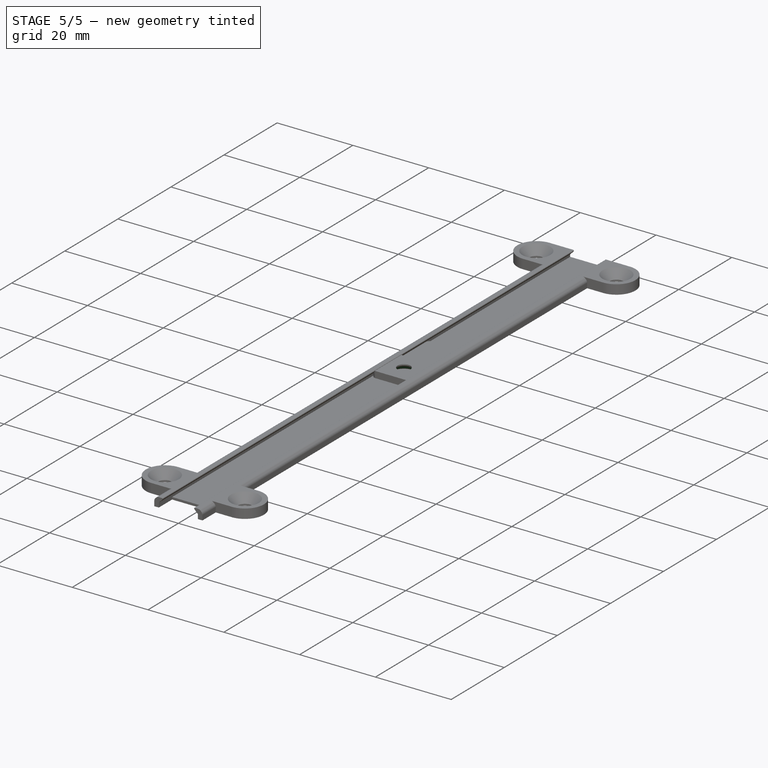
[diagram: stage 5 of 5 — iso view after this stage's code; geometry added in this stage tinted green]
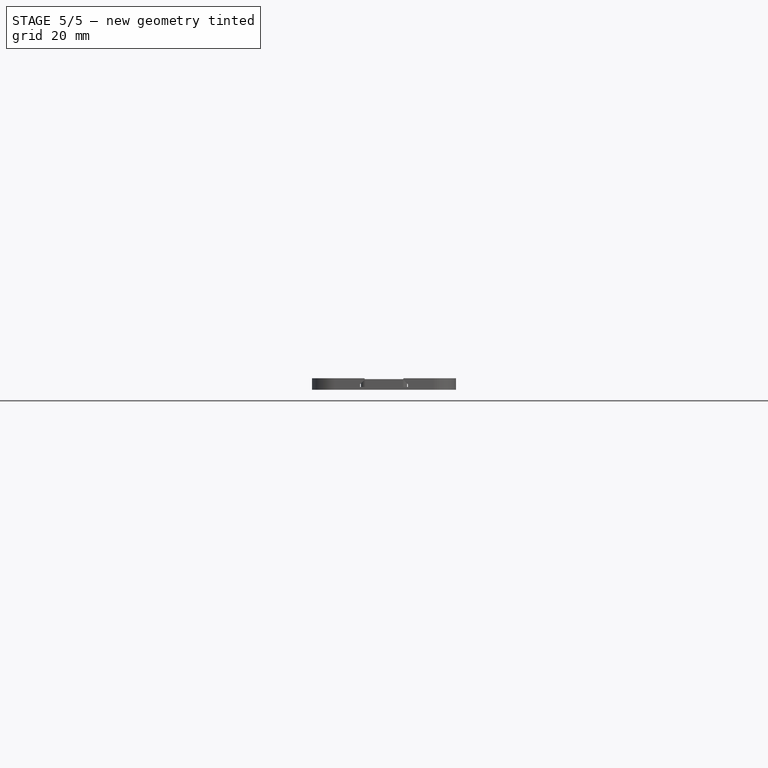
[diagram: stage 5 of 5 — front view after this stage's code; geometry added in this stage tinted green]
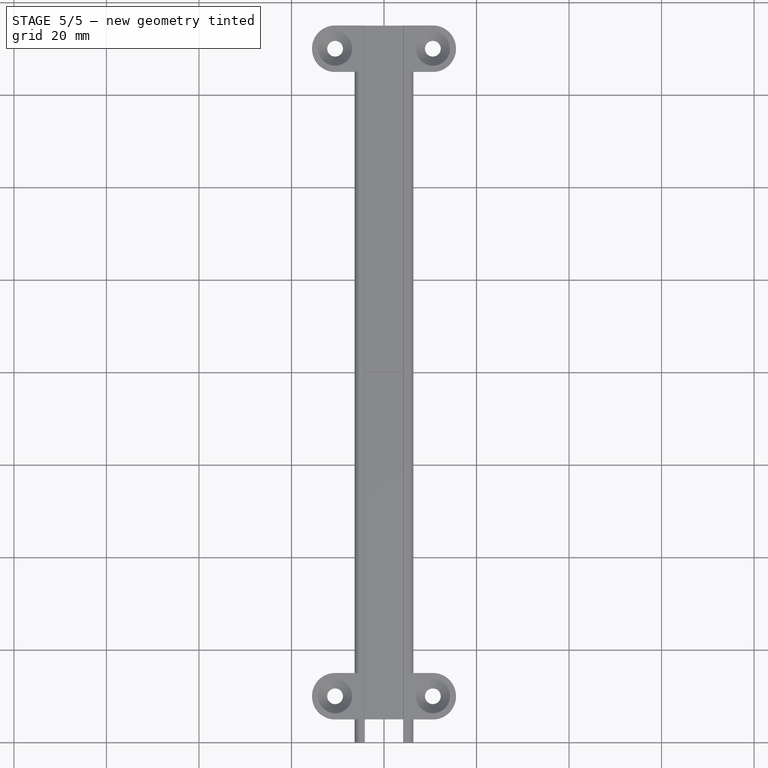
[diagram: stage 5 of 5 — top view after this stage's code; geometry added in this stage tinted green]
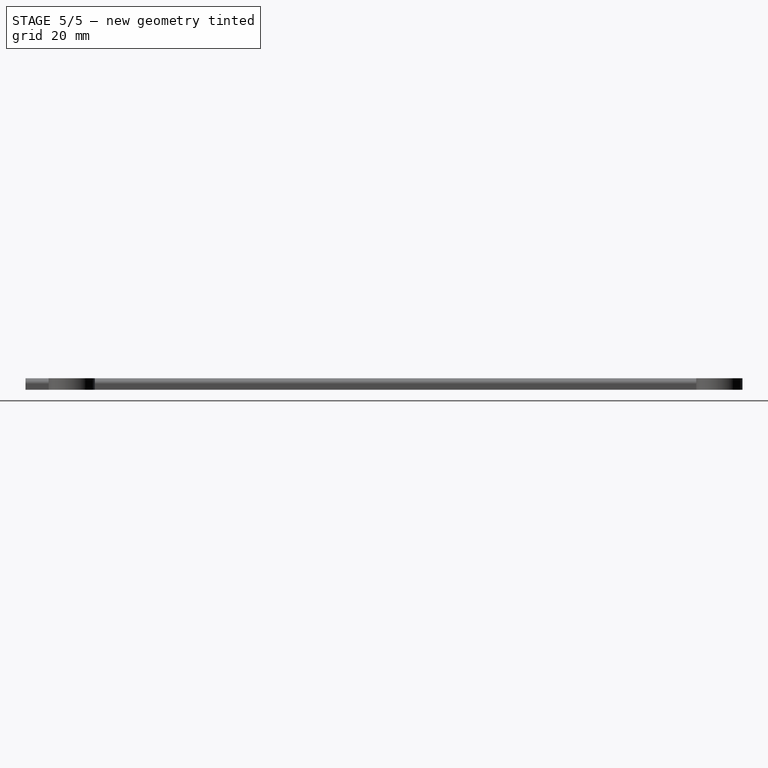
[diagram: stage 5 of 5 — right view after this stage's code; geometry added in this stage tinted green]
FEATURE [PartDesign::Chamfer] Chamfer
  Base = -> Pad001 [Edge16]
  BaseFeature = -> Pad001
  Size = 2
  expr: Size = Pad.Length
FEATURE [PartDesign::Fillet] Fillet
  Base = -> Chamfer [Edge19,Edge15,Edge17,Edge21]
  BaseFeature = -> Chamfer
  Radius = 0.499
FEATURE [PartDesign::Fillet] Fillet001
  Base = -> Fillet [Edge15,Edge33,Edge35,Edge19]
  BaseFeature = -> Fillet
  Radius = 1
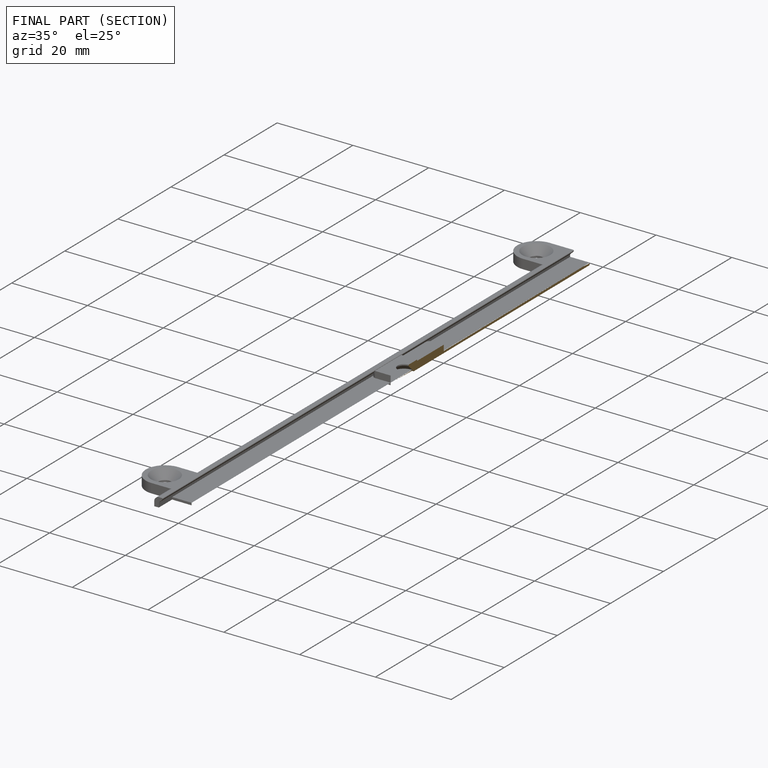
[diagram: finished part — half-section view (interior)]
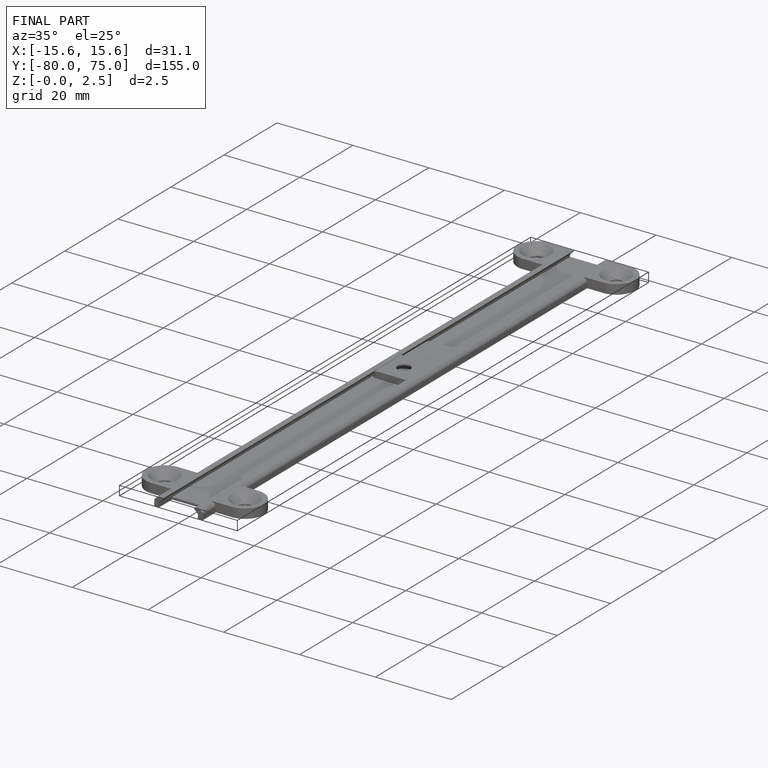
[diagram: finished part — iso view with bounding-box wireframe]
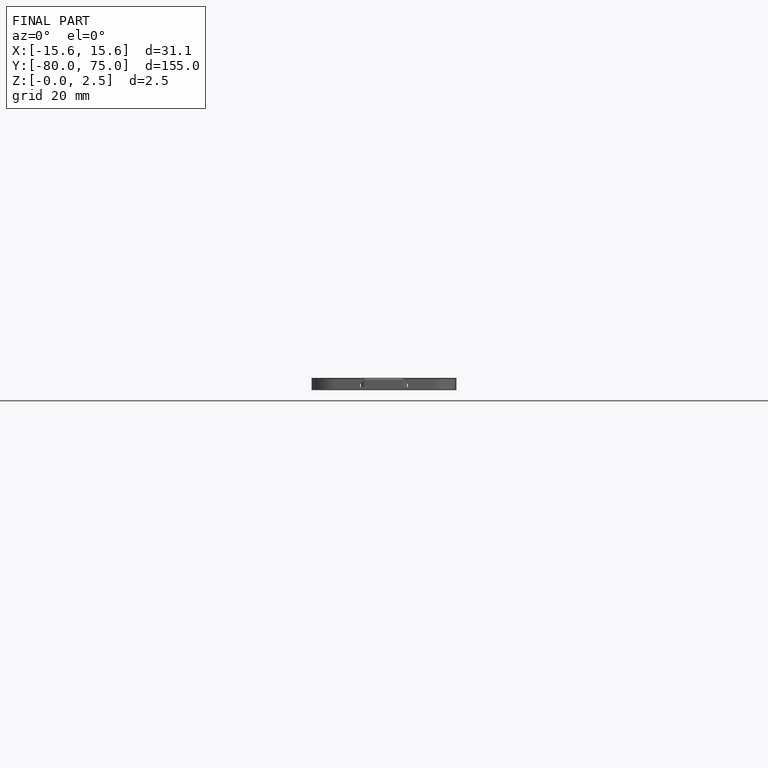
[diagram: finished part — front view with bounding-box wireframe]
